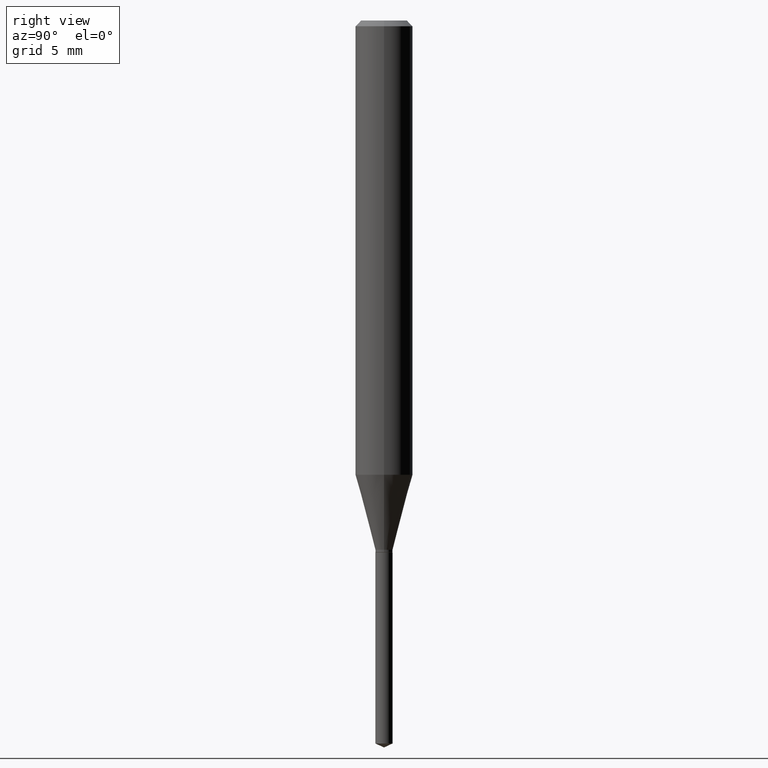
[diagram: clean part render]
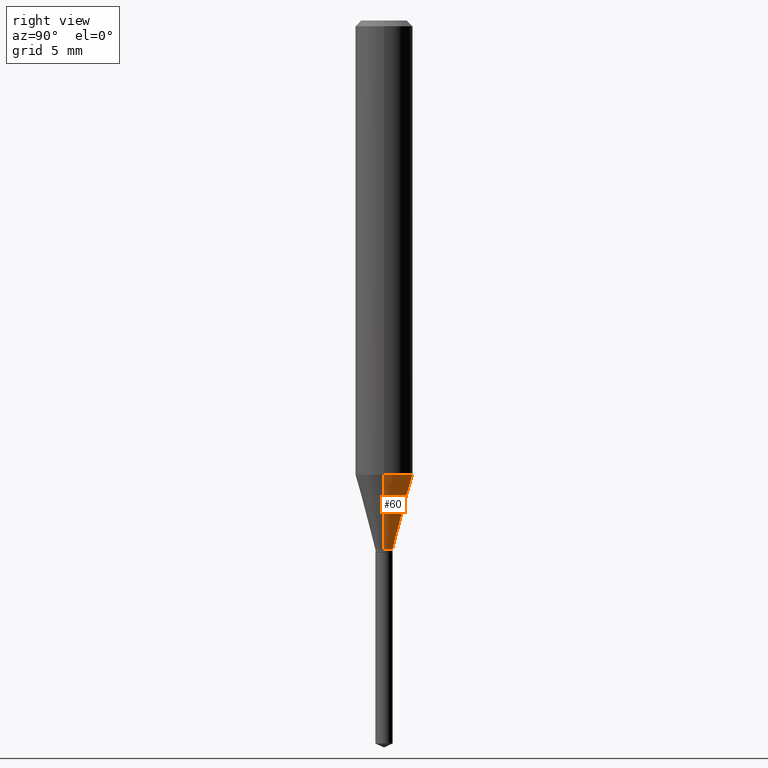
[diagram: same view with one face highlighted and labeled with its STEP entity id]
A machine part, right view. The second image highlights one B-rep face of the part: STEP entity #60.
In plain terms, the highlighted conical surface has half-angle 15 deg.
Its self-contained STEP definition (entity closure, byte-faithful):
#11 = DIRECTION ( 'NONE',  ( 1.000000000000000000, -6.982962677686271444E-15, 0.000000000000000000 ) ) ;
#20 = DIRECTION ( 'NONE',  ( -2.445468806185136597E-29, 3.491481338843145583E-15, 1.000000000000000000 ) ) ;
#21 = VERTEX_POINT ( 'NONE', #203 ) ;
#53 = DIRECTION ( 'NONE',  ( 1.000000000000000000, -6.982962677686267499E-15, 0.000000000000000000 ) ) ;
#60 = ADVANCED_FACE ( 'NONE', ( #364 ), #278, .T. ) ;
#61 = VECTOR ( 'NONE', #369, 39.37007874015748854 ) ;
#70 = CARTESIAN_POINT ( 'NONE',  ( -0.01770000000000000046, -3.677155410038416754E-15, -1.089199999999999946 ) ) ;
#74 = DIRECTION ( 'NONE',  ( -0.2588190451025211281, 5.211531920934547886E-15, 0.9659258262890679791 ) ) ;
#88 = VECTOR ( 'NONE', #74, 39.37007874015748854 ) ;
#91 = EDGE_LOOP ( 'NONE', ( #438, #274, #327, #231 ) ) ;
#101 = CARTESIAN_POINT ( 'NONE',  ( 2.663604623696850789E-29, -3.802921474267954047E-15, -1.089199999999999946 ) ) ;
#117 = LINE ( 'NONE', #70, #88 ) ;
#132 = CARTESIAN_POINT ( 'NONE',  ( -0.05905000000000010935, -2.844539538029139057E-15, -0.9348796991070267293 ) ) ;
#191 = EDGE_CURVE ( 'NONE', #21, #414, #374, .T. ) ;
#203 = CARTESIAN_POINT ( 'NONE',  ( 0.01770000000000000046, -3.926519913663001232E-15, -1.089199999999999946 ) ) ;
#208 = AXIS2_PLACEMENT_3D ( 'NONE', #291, #241, #53 ) ;
#209 = CARTESIAN_POINT ( 'NONE',  ( 2.663604623696850789E-29, -3.802921474267954047E-15, -1.089199999999999946 ) ) ;
#231 = ORIENTED_EDGE ( 'NONE', *, *, #191, .F. ) ;
#241 = DIRECTION ( 'NONE',  ( -2.445468806185136597E-29, 3.491481338843145583E-15, 1.000000000000000000 ) ) ;
#250 = CIRCLE ( 'NONE', #467, 0.01770000000000000046 ) ;
#261 = CIRCLE ( 'NONE', #208, 0.05905000000000010935 ) ;
#274 = ORIENTED_EDGE ( 'NONE', *, *, #450, .T. ) ;
#278 = CONICAL_SURFACE ( 'NONE', #315, 0.01770000000000000046, 0.2617993877991498519 ) ;
#281 = VERTEX_POINT ( 'NONE', #132 ) ;
#291 = CARTESIAN_POINT ( 'NONE',  ( 2.286219141701980490E-29, -3.264115023495478945E-15, -0.9348796991070267293 ) ) ;
#315 = AXIS2_PLACEMENT_3D ( 'NONE', #209, #359, #11 ) ;
#326 = DIRECTION ( 'NONE',  ( 1.000000000000000000, -6.982962677686271444E-15, 0.000000000000000000 ) ) ;
#327 = ORIENTED_EDGE ( 'NONE', *, *, #404, .F. ) ;
#344 = EDGE_CURVE ( 'NONE', #21, #377, #250, .T. ) ;
#359 = DIRECTION ( 'NONE',  ( -2.445468806185136597E-29, 3.491481338843145583E-15, 1.000000000000000000 ) ) ;
#364 = FACE_OUTER_BOUND ( 'NONE', #91, .T. ) ;
#369 = DIRECTION ( 'NONE',  ( 0.2588190451025211281, 1.565188264969622954E-15, 0.9659258262890679791 ) ) ;
#374 = LINE ( 'NONE', #479, #61 ) ;
#377 = VERTEX_POINT ( 'NONE', #474 ) ;
#404 = EDGE_CURVE ( 'NONE', #414, #281, #261, .T. ) ;
#414 = VERTEX_POINT ( 'NONE', #485 ) ;
#438 = ORIENTED_EDGE ( 'NONE', *, *, #344, .T. ) ;
#450 = EDGE_CURVE ( 'NONE', #377, #281, #117, .T. ) ;
#467 = AXIS2_PLACEMENT_3D ( 'NONE', #101, #20, #326 ) ;
#474 = CARTESIAN_POINT ( 'NONE',  ( -0.01770000000000000046, -3.685534965251639971E-15, -1.089199999999999946 ) ) ;
#479 = CARTESIAN_POINT ( 'NONE',  ( 0.01770000000000000046, -3.926519913663001232E-15, -1.089199999999999946 ) ) ;
#485 = CARTESIAN_POINT ( 'NONE',  ( 0.05905000000000010935, -3.676458969612853865E-15, -0.9348796991070267293 ) ) ;